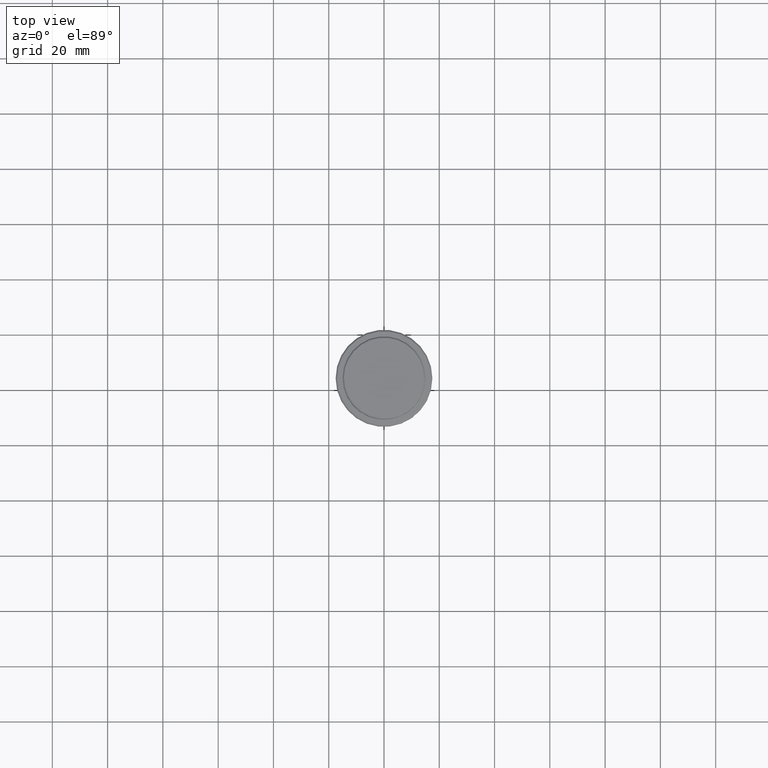
[diagram: clean part render]
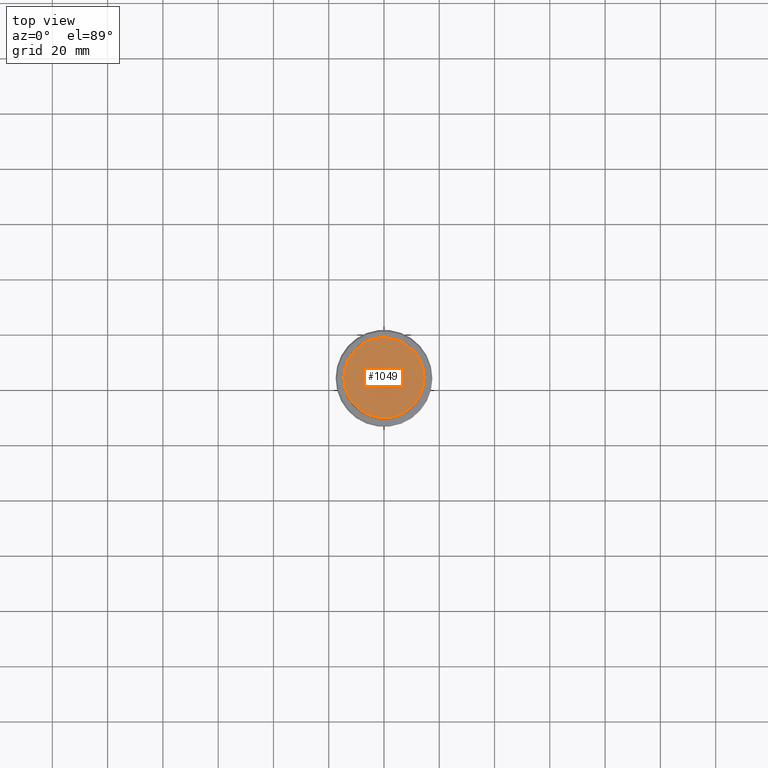
[diagram: same view with one face highlighted and labeled with its STEP entity id]
A machine part, top view. The second image highlights one B-rep face of the part: STEP entity #1049.
In plain terms, the highlighted planar face has unit normal (0, -0, 1).
Its self-contained STEP definition (entity closure, byte-faithful):
#112 = VERTEX_POINT ( 'NONE', #635 ) ;
#227 = DIRECTION ( 'NONE',  ( 1.000000000000000000, 0.000000000000000000, 0.000000000000000000 ) ) ;
#294 = CIRCLE ( 'NONE', #658, 14.49999999999998401 ) ;
#332 = FACE_OUTER_BOUND ( 'NONE', #770, .T. ) ;
#385 = DIRECTION ( 'NONE',  ( 1.000000000000000000, 0.000000000000000000, 0.000000000000000000 ) ) ;
#410 = CARTESIAN_POINT ( 'NONE',  ( 0.000000000000000000, 0.000000000000000000, 0.000000000000000000 ) ) ;
#422 = ORIENTED_EDGE ( 'NONE', *, *, #583, .T. ) ;
#508 = AXIS2_PLACEMENT_3D ( 'NONE', #1195, #859, #227 ) ;
#517 = DIRECTION ( 'NONE',  ( 1.000000000000000000, 0.000000000000000000, 0.000000000000000000 ) ) ;
#556 = CIRCLE ( 'NONE', #813, 14.49999999999998401 ) ;
#583 = EDGE_CURVE ( 'NONE', #719, #112, #556, .T. ) ;
#601 = DIRECTION ( 'NONE',  ( -0.000000000000000000, -0.000000000000000000, 1.000000000000000000 ) ) ;
#629 = DIRECTION ( 'NONE',  ( -0.000000000000000000, -0.000000000000000000, 1.000000000000000000 ) ) ;
#631 = ORIENTED_EDGE ( 'NONE', *, *, #1315, .T. ) ;
#635 = CARTESIAN_POINT ( 'NONE',  ( 14.49999999999998401, 1.806354028742345013E-15, 0.000000000000000000 ) ) ;
#658 = AXIS2_PLACEMENT_3D ( 'NONE', #1354, #601, #385 ) ;
#719 = VERTEX_POINT ( 'NONE', #869 ) ;
#770 = EDGE_LOOP ( 'NONE', ( #422, #631 ) ) ;
#813 = AXIS2_PLACEMENT_3D ( 'NONE', #410, #629, #517 ) ;
#859 = DIRECTION ( 'NONE',  ( 0.000000000000000000, -0.000000000000000000, 1.000000000000000000 ) ) ;
#869 = CARTESIAN_POINT ( 'NONE',  ( -14.49999999999998401, 0.000000000000000000, 0.000000000000000000 ) ) ;
#1049 = ADVANCED_FACE ( 'NONE', ( #332 ), #1412, .T. ) ;
#1195 = CARTESIAN_POINT ( 'NONE',  ( 0.000000000000000000, 0.000000000000000000, 0.000000000000000000 ) ) ;
#1315 = EDGE_CURVE ( 'NONE', #112, #719, #294, .T. ) ;
#1354 = CARTESIAN_POINT ( 'NONE',  ( 0.000000000000000000, 0.000000000000000000, 0.000000000000000000 ) ) ;
#1412 = PLANE ( 'NONE',  #508 ) ;